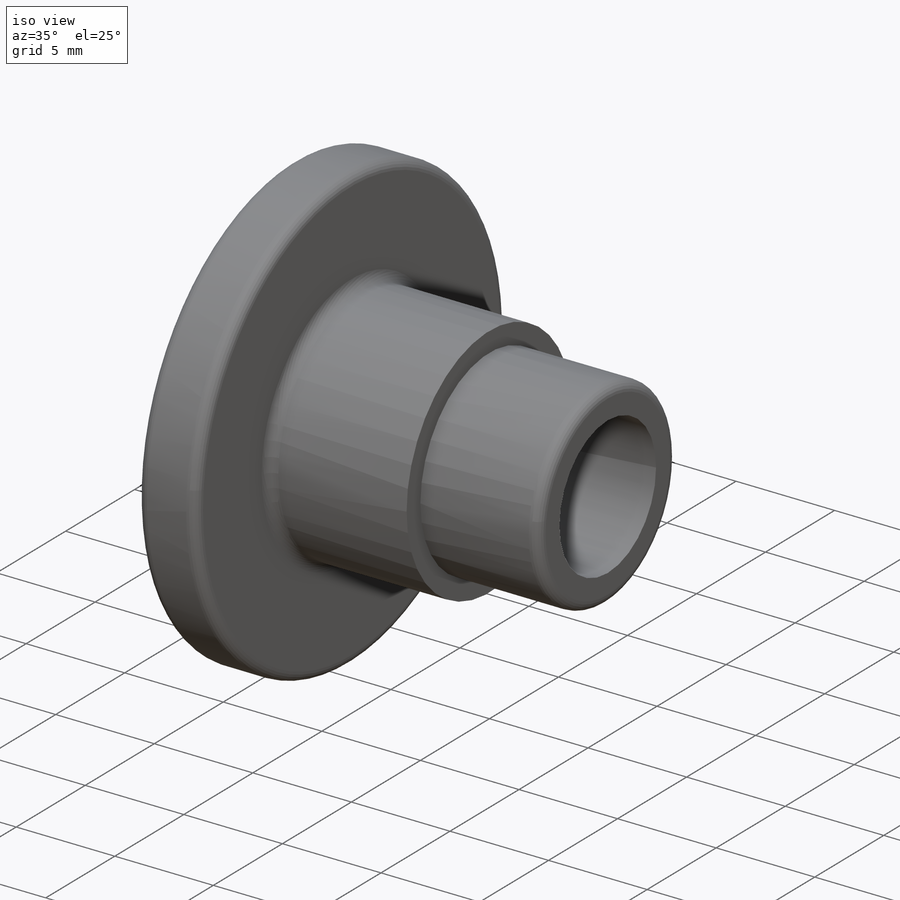
[diagram: iso view]
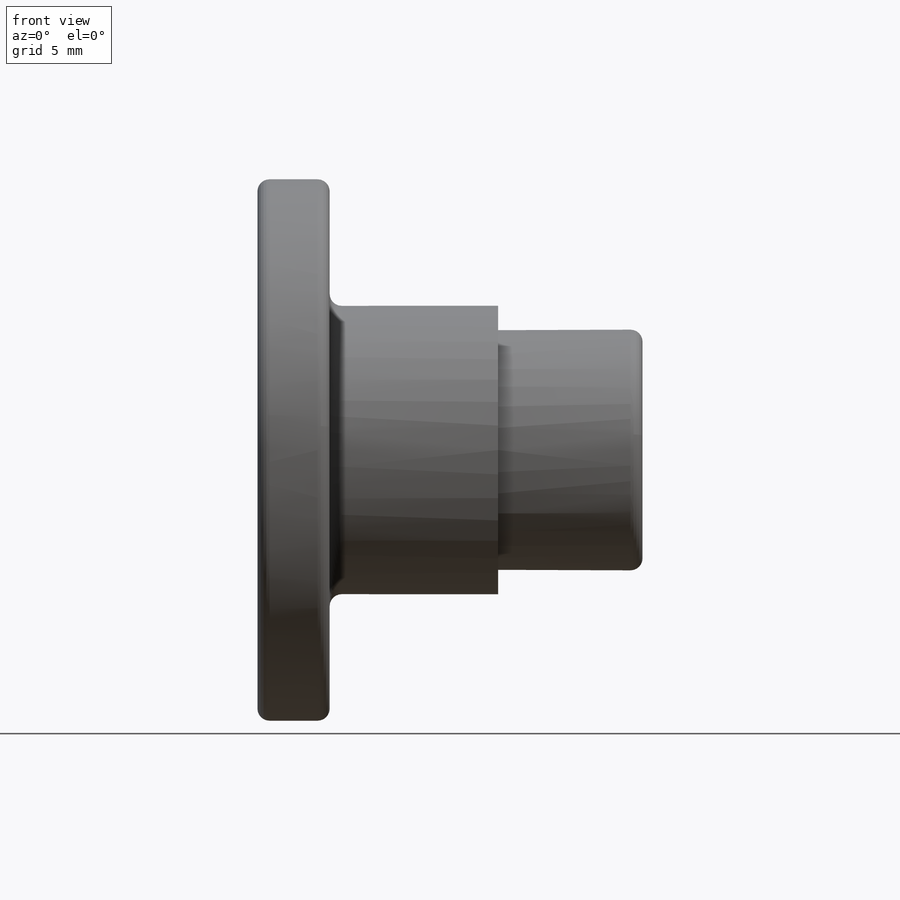
[diagram: front view]
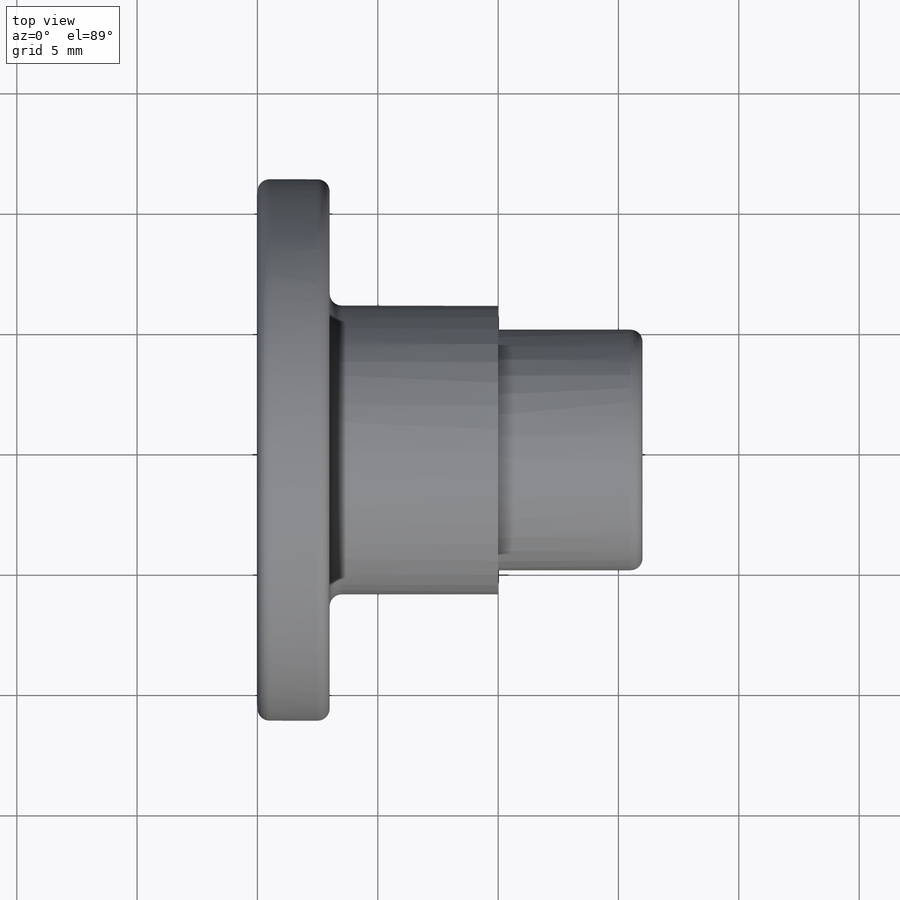
[diagram: top view]
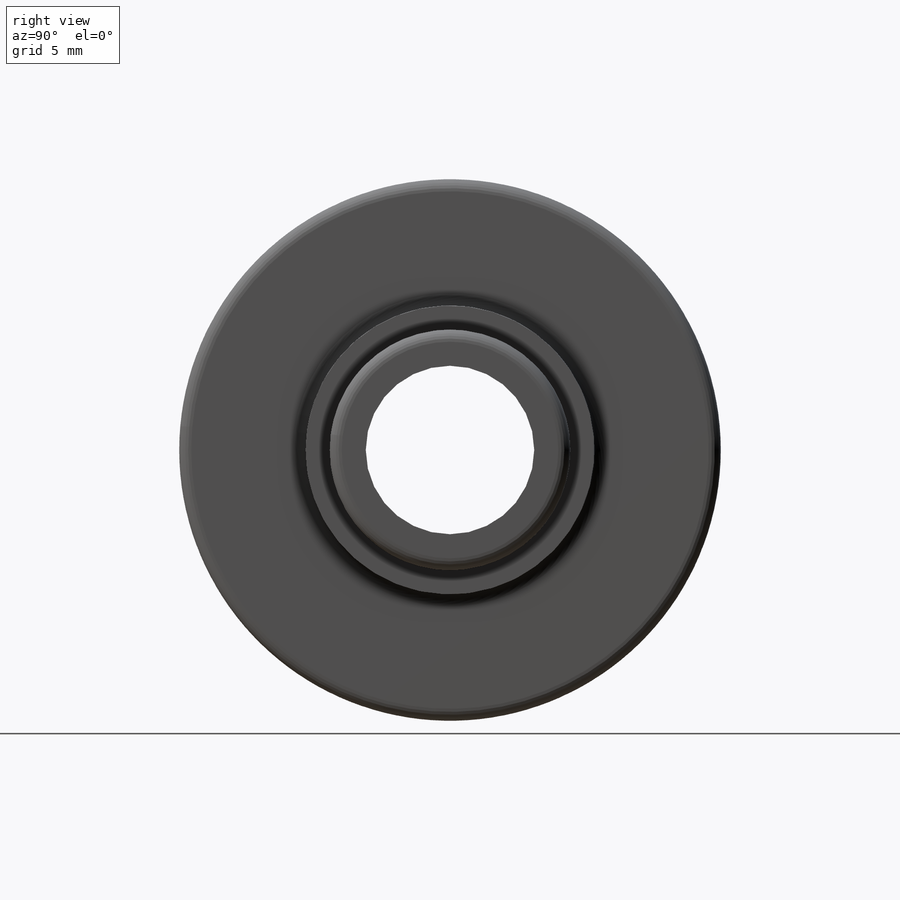
[diagram: right view]
SOLIDWORKS PART (.sldprt)
format: sldprt  version: not decoded by parser v0  size: 260,608 bytes
history: native  units: mm
features: sketch x4, material x1, revolve x1, fillet x1, hole x1, thread x1, cut_extrude x1 (+16 scaffold rows collapsed)
feature tree (26):
  scaffold x16  (default folders/planes/origin — collapsed)
  material  "Plain Carbon Steel"
  sketch  "Sketch1"  dims[D1=3.0mm D2=7.0mm D3=6.0mm D4=11.25mm D5=6.0mm D6=5.0mm]
  revolve  "Revolve1"  Angle=360deg
  fillet  "Fillet1"  Radius=0.5mm
  hole  "M8x1.0 Tapped Hole1"  Diameter=7mm Depth=16mm
  sketch  "Sketch3"
  sketch  "Sketch2"  dims[hole-wizard template sketch: 59 standard entries collapsed; hole parameters kept: c18.Thru Tap Drill Dia.=7.0mm c18.Thru Tap Drill Depth=16.0mm]
  thread  "Hole Thread1"  Diameter=8mm  [1 undecoded]
  sketch  "Sketch4"  dims[D1=10.0mm]
  cut_extrude  "Cut-Extrude1"  Depth=5mm
decode coverage: 8 of 9 modeling features carry decoded parameters
note: ~ marks probable driven/reference dimensions
note: 1 parameter value undecoded
note: suppression state not decoded; provenance and decode notes live in map.json
